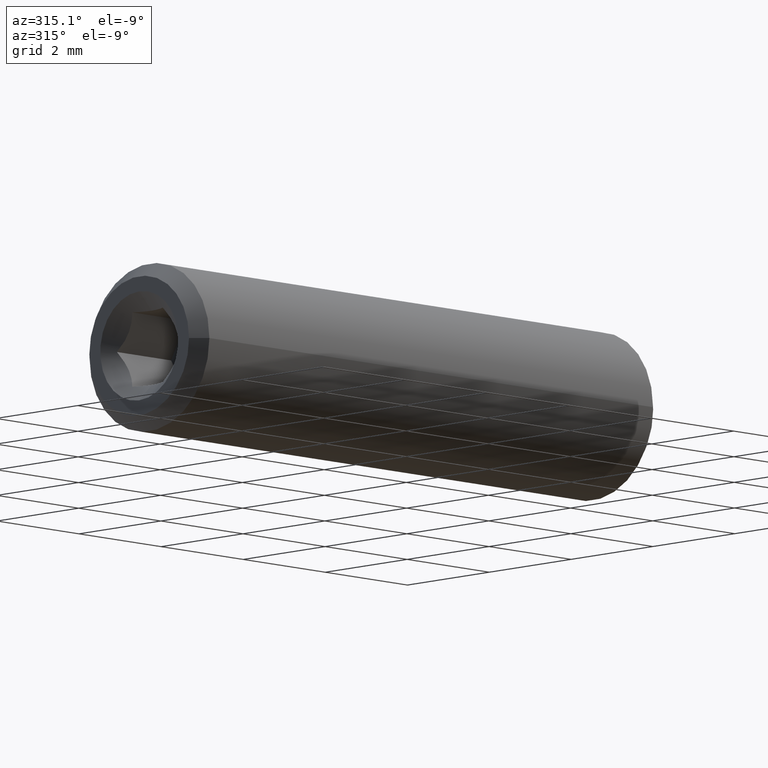
[diagram: clean part render]
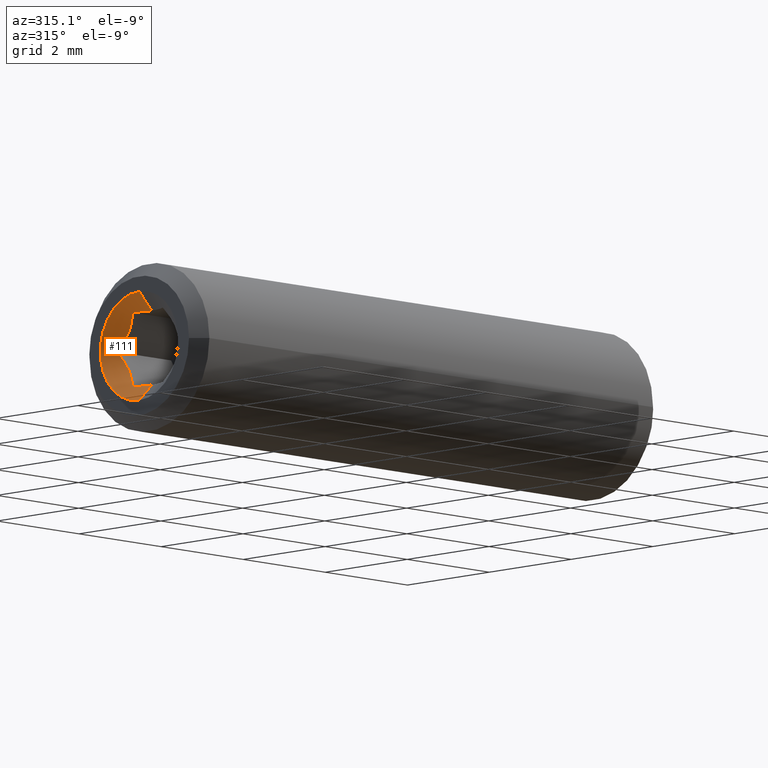
[diagram: same view with one face highlighted and labeled with its STEP entity id]
A machine part, auxiliary view. The second image highlights one B-rep face of the part: STEP entity #111.
In plain terms, the highlighted conical surface has half-angle 45 deg.
Its self-contained STEP definition (entity closure, byte-faithful):
#73 = EDGE_CURVE ( 'NONE', #276, #338, #1120, .T. ) ;
#79 = EDGE_CURVE ( 'NONE', #283, #277, #863, .T. ) ;
#81 = EDGE_CURVE ( 'NONE', #276, #347, #1119, .T. ) ;
#82 = EDGE_CURVE ( 'NONE', #347, #353, #1114, .T. ) ;
#84 = EDGE_CURVE ( 'NONE', #338, #275, #1116, .T. ) ;
#85 = EDGE_CURVE ( 'NONE', #353, #277, #381, .T. ) ;
#90 = EDGE_CURVE ( 'NONE', #275, #283, #382, .T. ) ;
#111 = ADVANCED_FACE ( 'NONE', ( #344 ), #818, .F. ) ;
#275 = VERTEX_POINT ( 'NONE', #933 ) ;
#276 = VERTEX_POINT ( 'NONE', #921 ) ;
#277 = VERTEX_POINT ( 'NONE', #931 ) ;
#283 = VERTEX_POINT ( 'NONE', #920 ) ;
#316 = EDGE_LOOP ( 'NONE', ( #1065, #1055, #1053, #1058, #1041, #1066, #1067 ) ) ;
#338 = VERTEX_POINT ( 'NONE', #930 ) ;
#344 = FACE_OUTER_BOUND ( 'NONE', #316, .T. ) ;
#347 = VERTEX_POINT ( 'NONE', #909 ) ;
#353 = VERTEX_POINT ( 'NONE', #887 ) ;
#381 = LINE ( 'NONE', #620, #808 ) ;
#382 = LINE ( 'NONE', #598, #836 ) ;
#473 = CARTESIAN_POINT ( 'NONE',  ( -1.034088861108279200, 0.4108257078634740000, 0.1451301109119353100 ) ) ;
#486 = CARTESIAN_POINT ( 'NONE',  ( -1.034099769175851100, 0.3912487977552124300, 0.1878651561841417100 ) ) ;
#518 = CARTESIAN_POINT ( 'NONE',  ( -1.034099769175850700, 0.3964145853068458100, 0.1878651561841413500 ) ) ;
#545 = DIRECTION ( 'NONE',  ( 0.0000000000000000000, 0.0000000000000000000, 1.000000000000000000 ) ) ;
#572 = CARTESIAN_POINT ( 'NONE',  ( -1.035763428367670900, 0.4014216149621793700, 0.1367696573608605800 ) ) ;
#577 = DIRECTION ( 'NONE',  ( -0.7071067811865466800, 4.335113662783663200E-016, -0.7071067811865483500 ) ) ;
#591 = CARTESIAN_POINT ( 'NONE',  ( -1.046052019764210000, 0.3912487977552124300, 0.1623174067724998400 ) ) ;
#594 = CARTESIAN_POINT ( 'NONE',  ( -1.035919743309948700, 0.4184179564848861100, 0.1582802712679157200 ) ) ;
#596 = CARTESIAN_POINT ( 'NONE',  ( -1.034099769175848400, 0.3912487977552124300, 0.1367696573608605800 ) ) ;
#598 = CARTESIAN_POINT ( 'NONE',  ( -1.046052019764210000, 0.3912487977552124300, 0.1998174067725007300 ) ) ;
#610 = CARTESIAN_POINT ( 'NONE',  ( -1.034099769175848200, 0.3964145853064209300, 0.1367696573608605800 ) ) ;
#613 = CARTESIAN_POINT ( 'NONE',  ( -1.035763428367795700, 0.4014216149624251800, 0.1878651561841410400 ) ) ;
#617 = CARTESIAN_POINT ( 'NONE',  ( -1.038052019764208500, 0.4059987977552137500, 0.1367696573608606100 ) ) ;
#620 = CARTESIAN_POINT ( 'NONE',  ( -1.046052019764210000, 0.3912487977552124300, 0.1248174067724989500 ) ) ;
#640 = CARTESIAN_POINT ( 'NONE',  ( -1.038052019764209100, 0.4059987977552126900, 0.1878651561841407400 ) ) ;
#643 = CARTESIAN_POINT ( 'NONE',  ( -1.034519691857087400, 0.4159767696628434200, 0.1540520116613701400 ) ) ;
#645 = CARTESIAN_POINT ( 'NONE',  ( -1.035733554507514100, 0.4083172630118534500, 0.1407853569809440500 ) ) ;
#648 = DIRECTION ( 'NONE',  ( -1.000000000000000000, 4.906129737190211900E-016, -0.0000000000000000000 ) ) ;
#725 = CARTESIAN_POINT ( 'NONE',  ( -1.034105310065370500, 0.4146886376555203300, 0.1518209015778307900 ) ) ;
#731 = CARTESIAN_POINT ( 'NONE',  ( -1.038052019764208500, 0.4059987977552137500, 0.1367696573608606100 ) ) ;
#733 = DIRECTION ( 'NONE',  ( -0.7071067811865466800, 3.469157606548169200E-016, 0.7071067811865483500 ) ) ;
#802 = AXIS2_PLACEMENT_3D ( 'NONE', #1033, #1007, #1023 ) ;
#808 = VECTOR ( 'NONE', #577, 39.37007874015748100 ) ;
#818 = CONICAL_SURFACE ( 'NONE', #831, 0.03750000000000090100, 0.7853981633974495000 ) ;
#831 = AXIS2_PLACEMENT_3D ( 'NONE', #591, #648, #545 ) ;
#836 = VECTOR ( 'NONE', #733, 39.37007874015748100 ) ;
#863 = CIRCLE ( 'NONE', #802, 0.03750000000000090100 ) ;
#887 = CARTESIAN_POINT ( 'NONE',  ( -1.034099769175848400, 0.3912487977552124300, 0.1367696573608605800 ) ) ;
#909 = CARTESIAN_POINT ( 'NONE',  ( -1.038052019764208500, 0.4059987977552137500, 0.1367696573608606100 ) ) ;
#920 = CARTESIAN_POINT ( 'NONE',  ( -1.046052019764210000, 0.3912487977552124300, 0.1998174067725007300 ) ) ;
#921 = CARTESIAN_POINT ( 'NONE',  ( -1.038052019764209600, 0.4207487977552127300, 0.1623174067724998400 ) ) ;
#930 = CARTESIAN_POINT ( 'NONE',  ( -1.038052019764209100, 0.4059987977552126900, 0.1878651561841407400 ) ) ;
#931 = CARTESIAN_POINT ( 'NONE',  ( -1.046052019764210000, 0.3912487977552124300, 0.1248174067724989500 ) ) ;
#933 = CARTESIAN_POINT ( 'NONE',  ( -1.034099769175851100, 0.3912487977552124300, 0.1878651561841417100 ) ) ;
#1007 = DIRECTION ( 'NONE',  ( -1.000000000000000000, 4.906129737190211900E-016, 0.0000000000000000000 ) ) ;
#1018 = CARTESIAN_POINT ( 'NONE',  ( -1.038052019764209600, 0.4207487977552127300, 0.1623174067724998400 ) ) ;
#1022 = CARTESIAN_POINT ( 'NONE',  ( -1.034519691857087100, 0.4159767696628431400, 0.1705828018836300900 ) ) ;
#1023 = DIRECTION ( 'NONE',  ( 0.0000000000000000000, 0.0000000000000000000, 1.000000000000000000 ) ) ;
#1026 = CARTESIAN_POINT ( 'NONE',  ( -1.035919743309949000, 0.4184179564848859400, 0.1663545422770843500 ) ) ;
#1027 = CARTESIAN_POINT ( 'NONE',  ( -1.036899601449207800, 0.4195963794402106700, 0.1643134538456564300 ) ) ;
#1028 = CARTESIAN_POINT ( 'NONE',  ( -1.035733554507514600, 0.4083172630118526700, 0.1838494565640570700 ) ) ;
#1029 = CARTESIAN_POINT ( 'NONE',  ( -1.038052019764209100, 0.4059987977552126900, 0.1878651561841407400 ) ) ;
#1030 = CARTESIAN_POINT ( 'NONE',  ( -1.034088861108279200, 0.4108257078634732800, 0.1795047026330655600 ) ) ;
#1031 = CARTESIAN_POINT ( 'NONE',  ( -1.038052019764209600, 0.4207487977552127300, 0.1623174067724998400 ) ) ;
#1032 = CARTESIAN_POINT ( 'NONE',  ( -1.034105310065370300, 0.4146886376555198300, 0.1728139119671696900 ) ) ;
#1033 = CARTESIAN_POINT ( 'NONE',  ( -1.046052019764210000, 0.3912487977552124300, 0.1623174067724998400 ) ) ;
#1034 = CARTESIAN_POINT ( 'NONE',  ( -1.036899601449207300, 0.4195963794402108300, 0.1603213596993434700 ) ) ;
#1041 = ORIENTED_EDGE ( 'NONE', *, *, #84, .T. ) ;
#1053 = ORIENTED_EDGE ( 'NONE', *, *, #81, .F. ) ;
#1055 = ORIENTED_EDGE ( 'NONE', *, *, #82, .F. ) ;
#1058 = ORIENTED_EDGE ( 'NONE', *, *, #73, .T. ) ;
#1065 = ORIENTED_EDGE ( 'NONE', *, *, #85, .F. ) ;
#1066 = ORIENTED_EDGE ( 'NONE', *, *, #90, .T. ) ;
#1067 = ORIENTED_EDGE ( 'NONE', *, *, #79, .T. ) ;
#1114 = B_SPLINE_CURVE_WITH_KNOTS ( 'NONE', 3,
 ( #731, #572, #610, #596 ),
 .UNSPECIFIED., .F., .F.,
 ( 4, 4 ),
 ( 0.002151828029267781900, 0.002540931851788680100 ),
 .UNSPECIFIED. ) ;
#1116 = B_SPLINE_CURVE_WITH_KNOTS ( 'NONE', 3,
 ( #640, #613, #518, #486 ),
 .UNSPECIFIED., .F., .F.,
 ( 4, 4 ),
 ( 0.002151828024353708400, 0.002540931846848999100 ),
 .UNSPECIFIED. ) ;
#1119 = B_SPLINE_CURVE_WITH_KNOTS ( 'NONE', 3,
 ( #1018, #1034, #594, #643, #725, #473, #645, #617 ),
 .UNSPECIFIED., .F., .F.,
 ( 4, 2, 2, 4 ),
 ( 2.544447900367086700E-007, 0.0001937523075417441000, 0.0003872501702934514900, 0.0007742458957968651900 ),
 .UNSPECIFIED. ) ;
#1120 = B_SPLINE_CURVE_WITH_KNOTS ( 'NONE', 3,
 ( #1031, #1027, #1026, #1022, #1032, #1030, #1028, #1029 ),
 .UNSPECIFIED., .F., .F.,
 ( 4, 2, 2, 4 ),
 ( 2.544447900367086700E-007, 0.0001937523075417564600, 0.0003872501702934762100, 0.0007742458957969179900 ),
 .UNSPECIFIED. ) ;